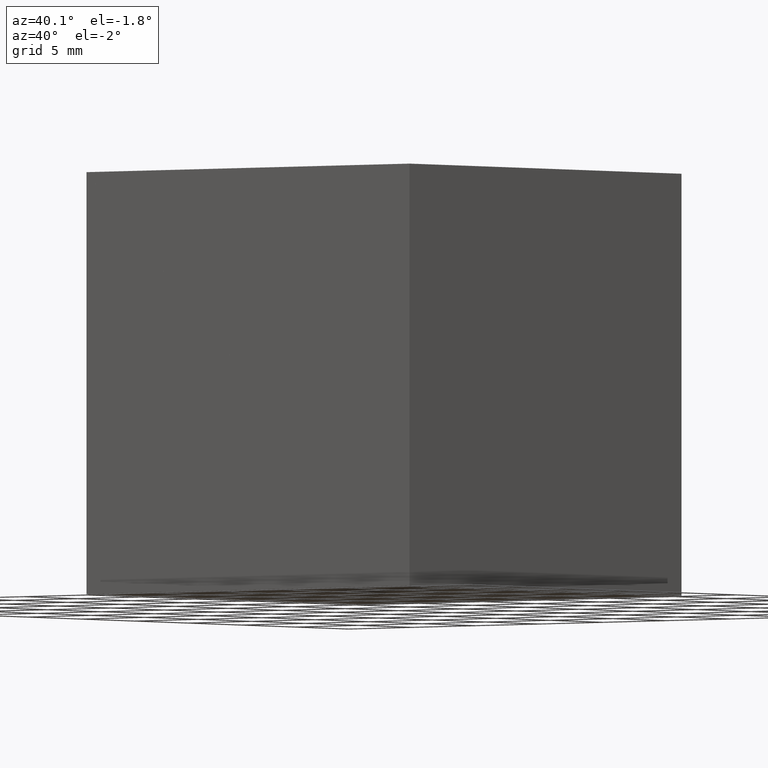
[diagram: clean part render]
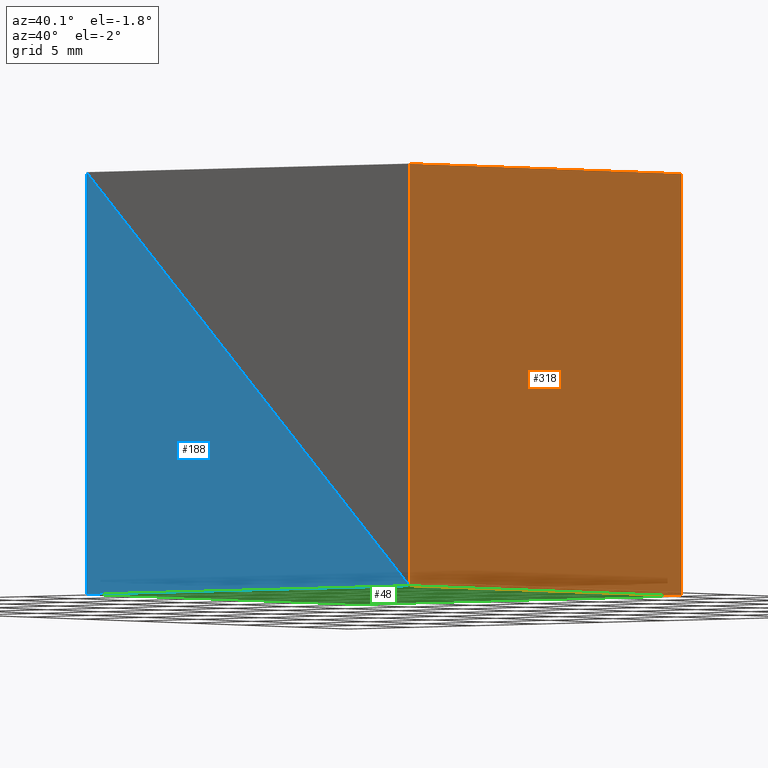
[diagram: same view with three faces highlighted in distinct colors, each labeled with its STEP entity id]
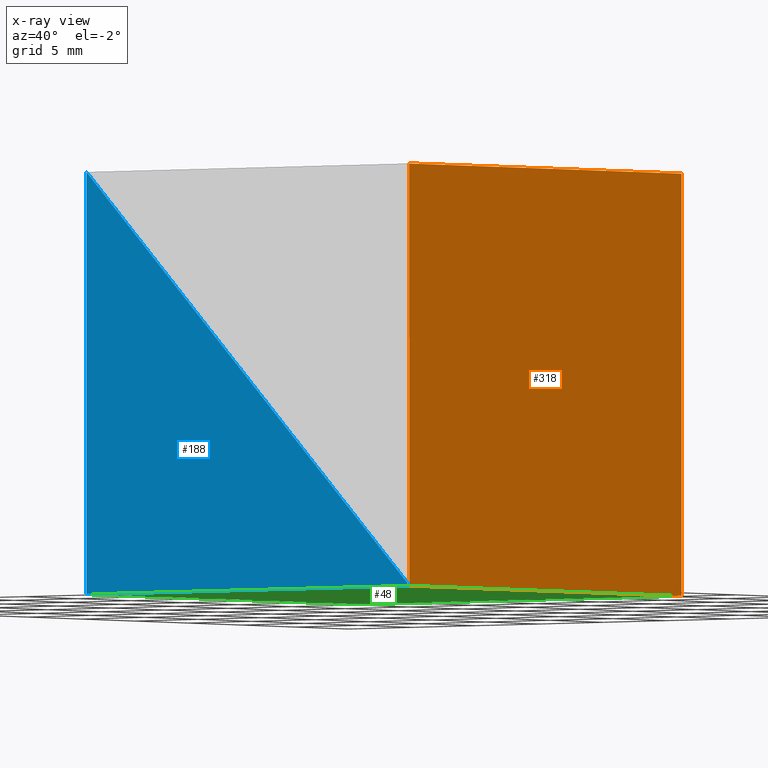
[diagram: x-ray of the same camera — body ghosted, the three highlighted faces saturated]
A machine part, auxiliary view with three faces highlighted in distinct colors.
The next image is the same camera in x-ray (body ghosted, the three faces saturated) — at least one of them is partly hidden behind the body in this view.
Their STEP definitions:

[orange] entity #318 — the highlighted planar face has unit normal (1, 0, 0).
#2 = DIRECTION ( 'NONE',  ( 0.000000000000000000, 1.000000000000000000, 0.000000000000000000 ) ) ;
#8 = VECTOR ( 'NONE', #189, 1000.000000000000000 ) ;
#22 = LINE ( 'NONE', #117, #297 ) ;
#24 = DIRECTION ( 'NONE',  ( 0.000000000000000000, 1.000000000000000000, 0.000000000000000000 ) ) ;
#30 = CARTESIAN_POINT ( 'NONE',  ( 12.69999999999999929, 25.39999999999999858, -12.69999999999999929 ) ) ;
#44 = CARTESIAN_POINT ( 'NONE',  ( 12.69999999999999929, 25.39999999999999858, 12.69999999999999929 ) ) ;
#55 = EDGE_CURVE ( 'NONE', #206, #286, #139, .T. ) ;
#64 = ORIENTED_EDGE ( 'NONE', *, *, #141, .F. ) ;
#66 = AXIS2_PLACEMENT_3D ( 'NONE', #201, #123, #2 ) ;
#70 = ORIENTED_EDGE ( 'NONE', *, *, #138, .F. ) ;
#74 = CARTESIAN_POINT ( 'NONE',  ( 12.69999999999999929, 25.39999999999999858, 12.69999999999999929 ) ) ;
#81 = VERTEX_POINT ( 'NONE', #118 ) ;
#108 = ORIENTED_EDGE ( 'NONE', *, *, #55, .T. ) ;
#111 = VERTEX_POINT ( 'NONE', #44 ) ;
#117 = CARTESIAN_POINT ( 'NONE',  ( 12.69999999999999929, 0.000000000000000000, 12.69999999999999929 ) ) ;
#118 = CARTESIAN_POINT ( 'NONE',  ( 12.69999999999999929, 0.000000000000000000, 12.69999999999999929 ) ) ;
#123 = DIRECTION ( 'NONE',  ( 1.000000000000000000, 0.000000000000000000, 0.000000000000000000 ) ) ;
#138 = EDGE_CURVE ( 'NONE', #111, #286, #268, .T. ) ;
#139 = LINE ( 'NONE', #219, #251 ) ;
#141 = EDGE_CURVE ( 'NONE', #81, #111, #166, .T. ) ;
#142 = DIRECTION ( 'NONE',  ( 0.000000000000000000, 0.000000000000000000, -1.000000000000000000 ) ) ;
#166 = LINE ( 'NONE', #299, #8 ) ;
#176 = EDGE_LOOP ( 'NONE', ( #311, #108, #70, #64 ) ) ;
#189 = DIRECTION ( 'NONE',  ( 0.000000000000000000, 1.000000000000000000, 0.000000000000000000 ) ) ;
#199 = EDGE_CURVE ( 'NONE', #81, #206, #22, .T. ) ;
#201 = CARTESIAN_POINT ( 'NONE',  ( 12.69999999999999929, 0.000000000000000000, 12.69999999999999929 ) ) ;
#206 = VERTEX_POINT ( 'NONE', #214 ) ;
#214 = CARTESIAN_POINT ( 'NONE',  ( 12.69999999999999929, 0.000000000000000000, -12.69999999999999929 ) ) ;
#219 = CARTESIAN_POINT ( 'NONE',  ( 12.69999999999999929, 0.000000000000000000, -12.69999999999999929 ) ) ;
#251 = VECTOR ( 'NONE', #24, 1000.000000000000000 ) ;
#268 = LINE ( 'NONE', #74, #291 ) ;
#272 = DIRECTION ( 'NONE',  ( 0.000000000000000000, 0.000000000000000000, -1.000000000000000000 ) ) ;
#277 = PLANE ( 'NONE',  #66 ) ;
#286 = VERTEX_POINT ( 'NONE', #30 ) ;
#291 = VECTOR ( 'NONE', #272, 1000.000000000000000 ) ;
#297 = VECTOR ( 'NONE', #142, 1000.000000000000000 ) ;
#299 = CARTESIAN_POINT ( 'NONE',  ( 12.69999999999999929, 0.000000000000000000, 12.69999999999999929 ) ) ;
#302 = FACE_OUTER_BOUND ( 'NONE', #176, .T. ) ;
#311 = ORIENTED_EDGE ( 'NONE', *, *, #199, .T. ) ;
#318 = ADVANCED_FACE ( 'NONE', ( #302 ), #277, .T. ) ;

[blue] entity #188 — the highlighted planar face has unit normal (-0, 1, 0).
#21 = FACE_OUTER_BOUND ( 'NONE', #209, .T. ) ;
#34 = VERTEX_POINT ( 'NONE', #87 ) ;
#50 = CARTESIAN_POINT ( 'NONE',  ( -12.69999999999999929, 0.000000000000000000, 12.69999999999999929 ) ) ;
#51 = LINE ( 'NONE', #50, #92 ) ;
#53 = VECTOR ( 'NONE', #103, 1000.000000000000000 ) ;
#72 = PLANE ( 'NONE',  #148 ) ;
#78 = DIRECTION ( 'NONE',  ( 0.7071067811865474617, 0.000000000000000000, -0.7071067811865474617 ) ) ;
#85 = VERTEX_POINT ( 'NONE', #121 ) ;
#87 = CARTESIAN_POINT ( 'NONE',  ( -12.69999999999999929, 0.000000000000000000, -12.69999999999999929 ) ) ;
#92 = VECTOR ( 'NONE', #78, 1000.000000000000114 ) ;
#103 = DIRECTION ( 'NONE',  ( 0.000000000000000000, 0.000000000000000000, 1.000000000000000000 ) ) ;
#114 = CARTESIAN_POINT ( 'NONE',  ( -3.719743878930840353, 0.000000000000000000, -3.719743878930850123 ) ) ;
#121 = CARTESIAN_POINT ( 'NONE',  ( -12.69999999999999929, 0.000000000000000000, 12.69999999999999929 ) ) ;
#143 = CARTESIAN_POINT ( 'NONE',  ( 12.69999999999999929, 0.000000000000000000, -12.69999999999999929 ) ) ;
#144 = CARTESIAN_POINT ( 'NONE',  ( 12.69999999999999929, 0.000000000000000000, -12.69999999999999929 ) ) ;
#148 = AXIS2_PLACEMENT_3D ( 'NONE', #114, #298, #292 ) ;
#159 = EDGE_CURVE ( 'NONE', #85, #198, #51, .T. ) ;
#164 = EDGE_CURVE ( 'NONE', #198, #34, #317, .T. ) ;
#168 = LINE ( 'NONE', #200, #53 ) ;
#188 = ADVANCED_FACE ( 'NONE', ( #21 ), #72, .F. ) ;
#198 = VERTEX_POINT ( 'NONE', #144 ) ;
#200 = CARTESIAN_POINT ( 'NONE',  ( -12.69999999999999929, 0.000000000000000000, -12.69999999999999929 ) ) ;
#208 = VECTOR ( 'NONE', #264, 1000.000000000000000 ) ;
#209 = EDGE_LOOP ( 'NONE', ( #237, #290, #211 ) ) ;
#211 = ORIENTED_EDGE ( 'NONE', *, *, #159, .F. ) ;
#237 = ORIENTED_EDGE ( 'NONE', *, *, #289, .F. ) ;
#264 = DIRECTION ( 'NONE',  ( -1.000000000000000000, 0.000000000000000000, 0.000000000000000000 ) ) ;
#289 = EDGE_CURVE ( 'NONE', #34, #85, #168, .T. ) ;
#290 = ORIENTED_EDGE ( 'NONE', *, *, #164, .F. ) ;
#292 = DIRECTION ( 'NONE',  ( 1.000000000000000000, 0.000000000000000000, 0.000000000000000000 ) ) ;
#298 = DIRECTION ( 'NONE',  ( -0.000000000000000000, 1.000000000000000000, 0.000000000000000000 ) ) ;
#317 = LINE ( 'NONE', #143, #208 ) ;

[green] entity #48 — the highlighted planar face has unit normal (0, 0, -1).
#1 = CARTESIAN_POINT ( 'NONE',  ( 12.69999999999999929, 25.39999999999999858, -12.69999999999999929 ) ) ;
#25 = DIRECTION ( 'NONE',  ( 0.000000000000000000, 1.000000000000000000, 0.000000000000000000 ) ) ;
#27 = VECTOR ( 'NONE', #243, 1000.000000000000000 ) ;
#34 = VERTEX_POINT ( 'NONE', #87 ) ;
#42 = DIRECTION ( 'NONE',  ( 0.000000000000000000, -1.000000000000000000, 0.000000000000000000 ) ) ;
#48 = ADVANCED_FACE ( 'NONE', ( #261 ), #182, .T. ) ;
#49 = CARTESIAN_POINT ( 'NONE',  ( 12.69999999999999929, 0.000000000000000000, -12.69999999999999929 ) ) ;
#60 = ORIENTED_EDGE ( 'NONE', *, *, #164, .T. ) ;
#65 = CARTESIAN_POINT ( 'NONE',  ( 12.69999999999999929, 0.000000000000000000, -12.69999999999999929 ) ) ;
#71 = LINE ( 'NONE', #215, #316 ) ;
#87 = CARTESIAN_POINT ( 'NONE',  ( -12.69999999999999929, 0.000000000000000000, -12.69999999999999929 ) ) ;
#88 = EDGE_CURVE ( 'NONE', #34, #127, #71, .T. ) ;
#90 = EDGE_LOOP ( 'NONE', ( #60, #275, #183, #304 ) ) ;
#120 = CARTESIAN_POINT ( 'NONE',  ( -12.69999999999999929, 25.39999999999999858, -12.69999999999999929 ) ) ;
#127 = VERTEX_POINT ( 'NONE', #120 ) ;
#137 = VERTEX_POINT ( 'NONE', #1 ) ;
#143 = CARTESIAN_POINT ( 'NONE',  ( 12.69999999999999929, 0.000000000000000000, -12.69999999999999929 ) ) ;
#144 = CARTESIAN_POINT ( 'NONE',  ( 12.69999999999999929, 0.000000000000000000, -12.69999999999999929 ) ) ;
#160 = DIRECTION ( 'NONE',  ( 0.000000000000000000, 0.000000000000000000, -1.000000000000000000 ) ) ;
#164 = EDGE_CURVE ( 'NONE', #198, #34, #317, .T. ) ;
#174 = CARTESIAN_POINT ( 'NONE',  ( 12.69999999999999929, 25.39999999999999858, -12.69999999999999929 ) ) ;
#182 = PLANE ( 'NONE',  #263 ) ;
#183 = ORIENTED_EDGE ( 'NONE', *, *, #278, .F. ) ;
#194 = EDGE_CURVE ( 'NONE', #198, #137, #213, .T. ) ;
#198 = VERTEX_POINT ( 'NONE', #144 ) ;
#208 = VECTOR ( 'NONE', #264, 1000.000000000000000 ) ;
#213 = LINE ( 'NONE', #49, #27 ) ;
#215 = CARTESIAN_POINT ( 'NONE',  ( -12.69999999999999929, 0.000000000000000000, -12.69999999999999929 ) ) ;
#217 = VECTOR ( 'NONE', #252, 1000.000000000000000 ) ;
#243 = DIRECTION ( 'NONE',  ( 0.000000000000000000, 1.000000000000000000, 0.000000000000000000 ) ) ;
#252 = DIRECTION ( 'NONE',  ( -1.000000000000000000, 0.000000000000000000, 0.000000000000000000 ) ) ;
#261 = FACE_OUTER_BOUND ( 'NONE', #90, .T. ) ;
#263 = AXIS2_PLACEMENT_3D ( 'NONE', #65, #160, #42 ) ;
#264 = DIRECTION ( 'NONE',  ( -1.000000000000000000, 0.000000000000000000, 0.000000000000000000 ) ) ;
#275 = ORIENTED_EDGE ( 'NONE', *, *, #88, .T. ) ;
#276 = LINE ( 'NONE', #174, #217 ) ;
#278 = EDGE_CURVE ( 'NONE', #137, #127, #276, .T. ) ;
#304 = ORIENTED_EDGE ( 'NONE', *, *, #194, .F. ) ;
#316 = VECTOR ( 'NONE', #25, 1000.000000000000000 ) ;
#317 = LINE ( 'NONE', #143, #208 ) ;